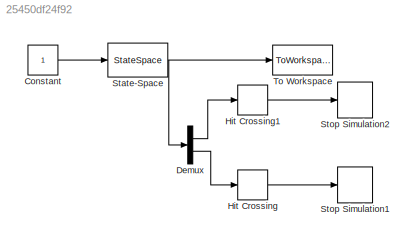
MODEL slx_25450df24f92
KIND model
CONFIG AbsTol = auto
CONFIG FixedStep = auto
CONFIG MaxStep = auto
CONFIG MinStep = auto
CONFIG RelTol = 1e-3
CONFIG SampleTimeConstraint = Unconstrained
CONFIG Solver = VariableStepAuto
CONFIG SolverMode = Auto
CONFIG SolverName = VariableStepAuto
CONFIG StartTime = 0.0
CONFIG StopTime = 10.0
BLOCK [Constant] Constant
BLOCK [Demux] Demux
  DisplayOption = bar
  Outputs = 2
  Ports = [1, 2]
BLOCK [HitCross] Hit Crossing
  HitCrossingDirection = falling
  HitCrossingOffset = sol + rayon
  Ports = [1, 1]
BLOCK [HitCross] Hit Crossing1
  HitCrossingOffset = 15
  Ports = [1, 1]
BLOCK [StateSpace] State-Space
  A = A
  B = B
  C = C
  D = D
  Ports = [1, 1]
  X0 = init
BLOCK [Stop] Stop Simulation1
BLOCK [Stop] Stop Simulation2
BLOCK [ToWorkspace] To Workspace
  FixptAsFi = on
  MaxDataPoints = inf
  Ports = [1]
  SampleTime = frame
  Save2DSignal = 3-D array (concatenate along third dimension)
  SaveFormat = Timeseries
  VariableName = out
LINE Constant:1 -> State-Space:1
LINE Demux:1 -> Hit Crossing1:1
LINE Demux:2 -> Hit Crossing:1
LINE Hit Crossing1:1 -> Stop Simulation2:1
LINE Hit Crossing:1 -> Stop Simulation1:1
NET State-Space:1 -> Demux:1, To Workspace:1
note: NET lines group one-source signal fan-out (src -> all destinations, sorted); 1:1 wires keep LINE
